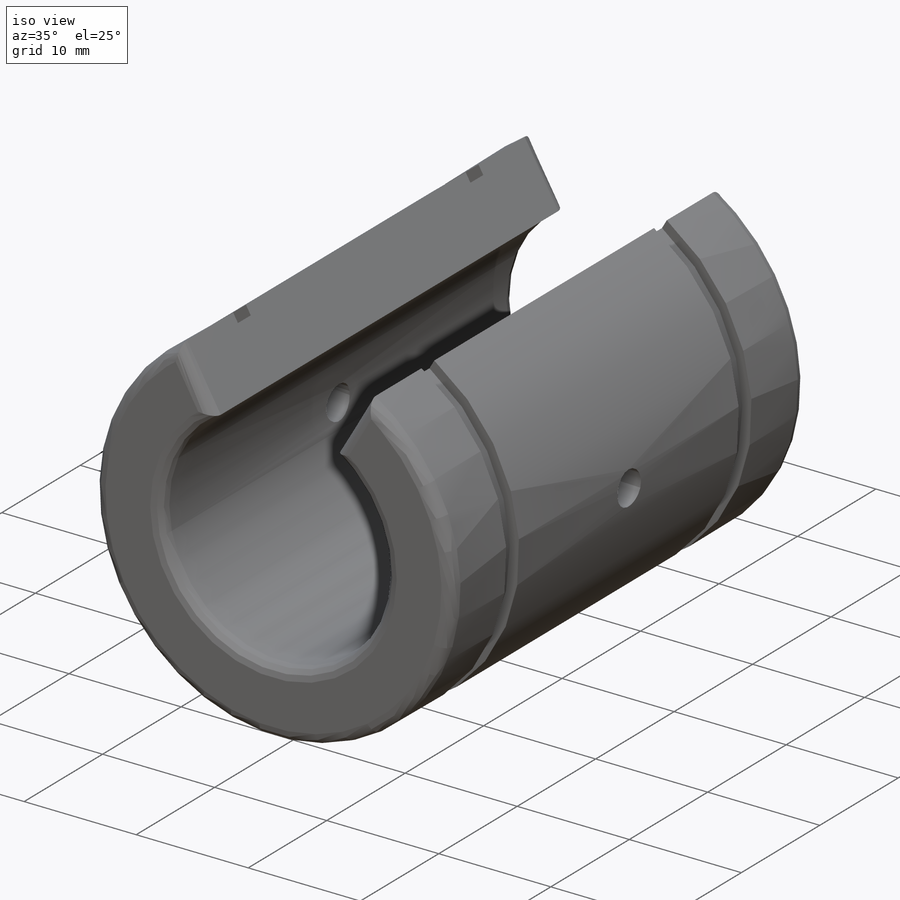
[diagram: iso view]
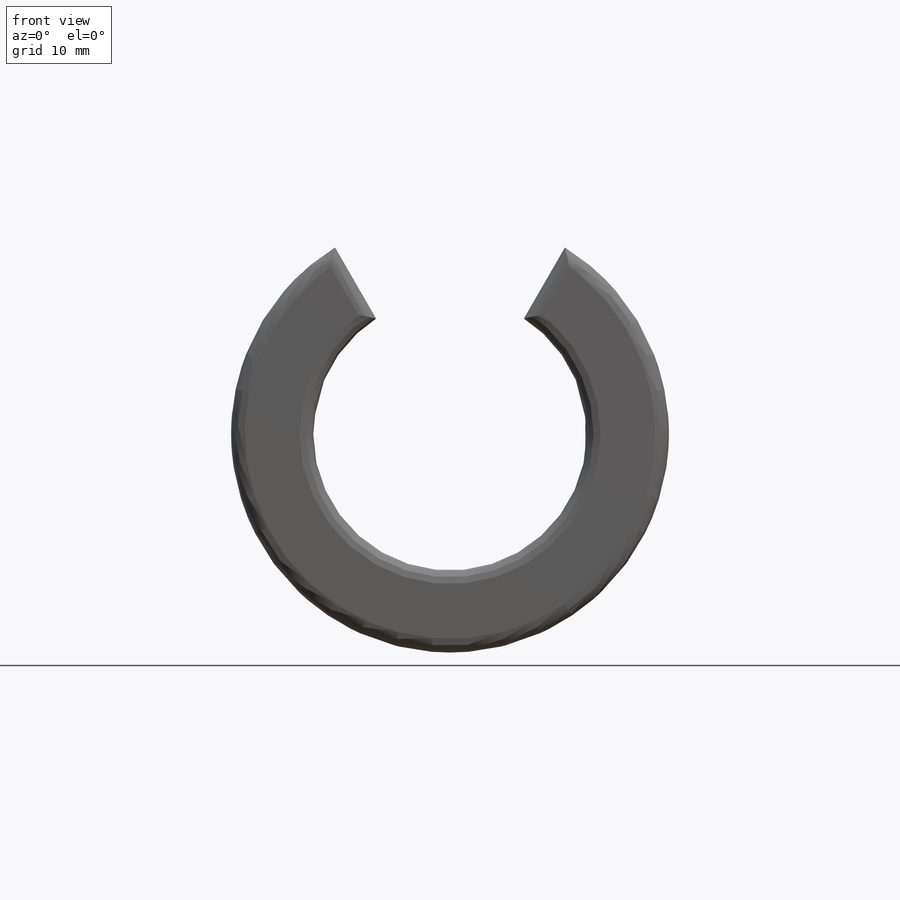
[diagram: front view]
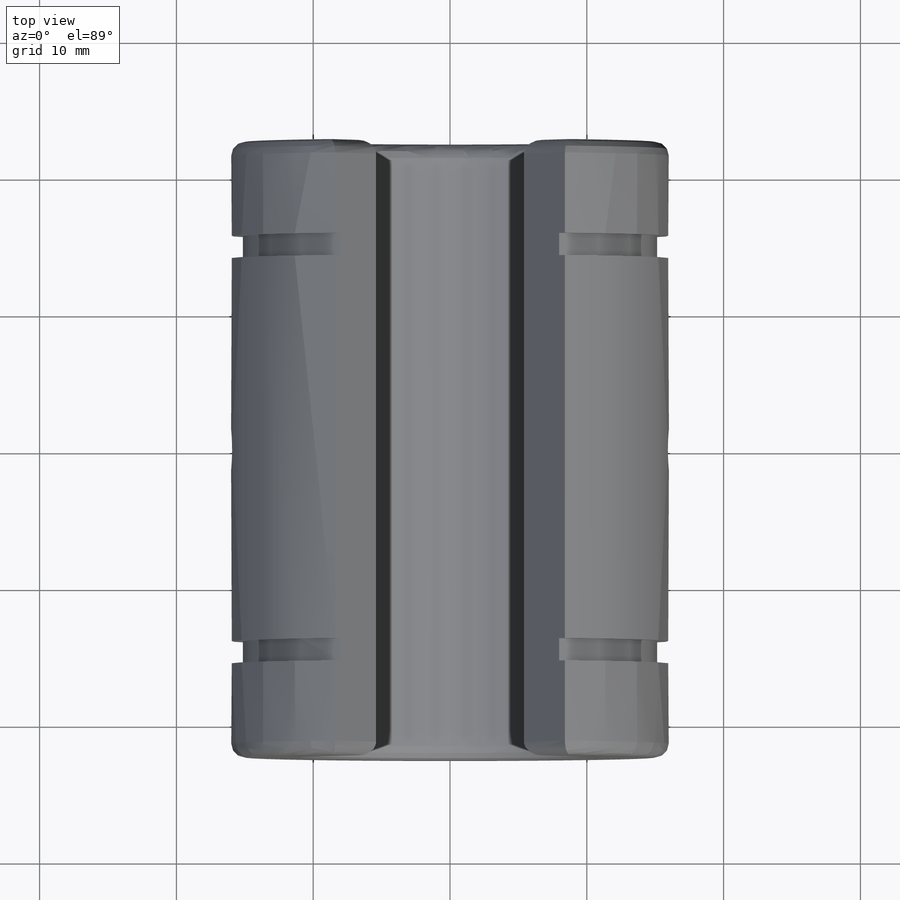
[diagram: top view]
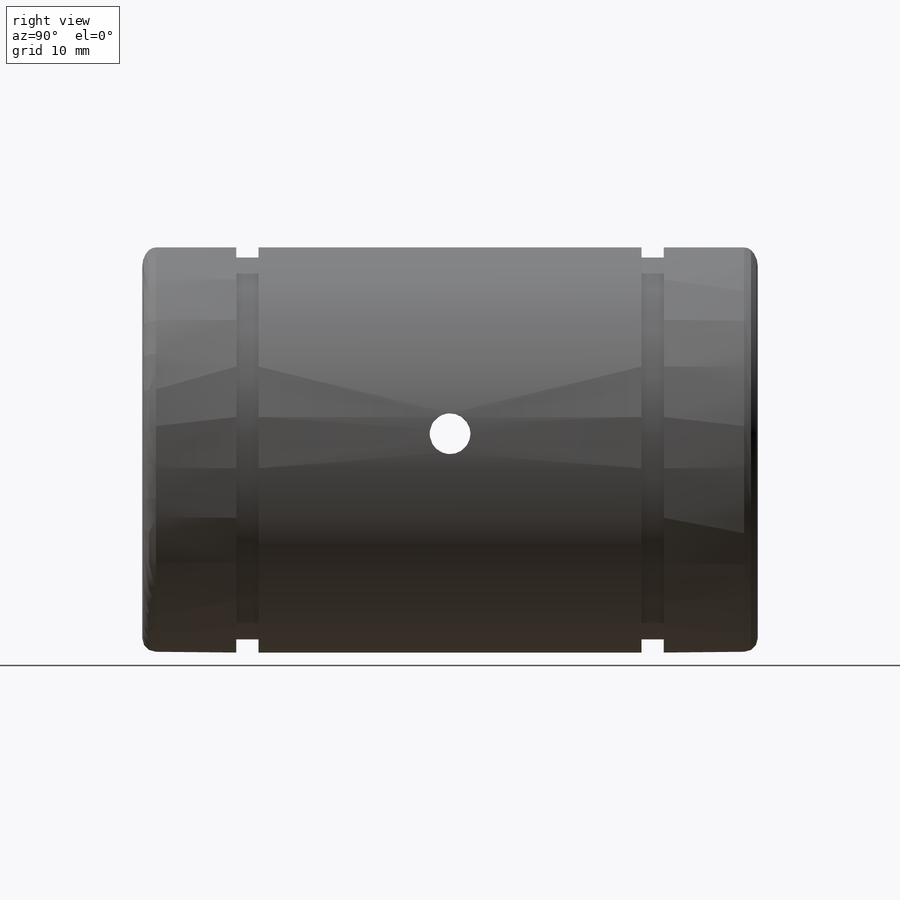
[diagram: right view]
SOLIDWORKS PART (.sldprt)
format: sldprt  version: not decoded by parser v0  size: 302,592 bytes
history: native  units: mm
features: sketch x3, cut_extrude x2, material x1, extrude x1, plane x1, fillet x1, mirror x1 (+11 scaffold rows collapsed)
feature tree (21):
  scaffold x11  (default folders/planes/origin — collapsed)
  material  "Material <not specified>"
  sketch  "Sketch1"  dims[c1.D1=32.0mm c1.D2=20.0mm c1.D3=10.8mm c1.D4=~5.699506mm c2.D4=30.0deg]
  extrude  "Extrude1"  Depth=45mm
  plane  "Plane1"  Offset=14mm
  sketch  "Sketch2"  dims[D1=30.3mm]
  cut_extrude  "Extrude2"  Depth=1.63mm
  fillet  "Fillet1"  Radius=1mm
  mirror  "Mirror1"
  sketch  "Sketch3"  dims[D1=3.0mm]
  cut_extrude  "Extrude3"  [1 undecoded]
decode coverage: 6 of 8 modeling features carry decoded parameters
note: ~ marks probable driven/reference dimensions
note: 1 parameter value undecoded
note: suppression state not decoded; provenance and decode notes live in map.json
